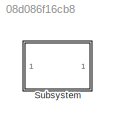
MODEL slx_08d086f16cb8
KIND model
CONFIG AbsTol = auto
CONFIG EnableMultiTasking = off
CONFIG FixedStep = auto
CONFIG MaxStep = auto
CONFIG MinStep = auto
CONFIG RelTol = 1e-3
CONFIG SampleTimeConstraint = Unconstrained
CONFIG SolverName = VariableStepAuto
CONFIG StartTime = 0.0
CONFIG StopTime = 10.0
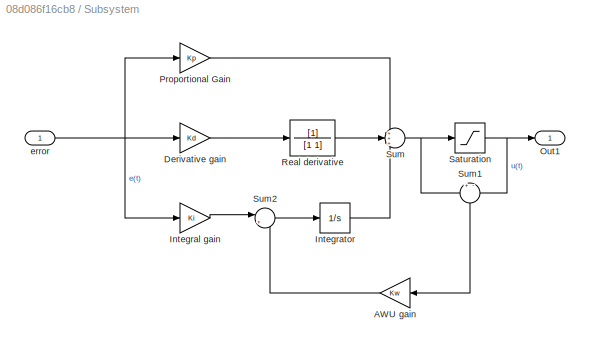
BLOCK [SubSystem] Subsystem
BLOCK [Gain] Subsystem/AWU gain
  Gain = Kw
  NameLocation = top
BLOCK [Gain] Subsystem/Derivative gain
  Gain = Kd
BLOCK [Gain] Subsystem/Integral gain
  Gain = Ki
BLOCK [Integrator] Subsystem/Integrator
BLOCK [Outport] Subsystem/Out1
BLOCK [Gain] Subsystem/Proportional Gain
  Gain = Kp
BLOCK [TransferFcn] Subsystem/Real derivative
  Denominator = [1 1]
BLOCK [Saturate] Subsystem/Saturation
  NameLocation = top
BLOCK [Sum] Subsystem/Sum
  Inputs = +++
BLOCK [Sum] Subsystem/Sum1
  Inputs = +-
  NameLocation = left
BLOCK [Sum] Subsystem/Sum2
  Inputs = |+-
BLOCK [Inport] Subsystem/error
LINE Subsystem/AWU gain:1 -> Subsystem/Sum2:2
LINE Subsystem/Derivative gain:1 -> Subsystem/Real derivative:1
LINE Subsystem/Integral gain:1 -> Subsystem/Sum2:1
LINE Subsystem/Integrator:1 -> Subsystem/Sum:3
LINE Subsystem/Proportional Gain:1 -> Subsystem/Sum:1
LINE Subsystem/Real derivative:1 -> Subsystem/Sum:2
NET Subsystem/Saturation:1 -> Subsystem/Out1:1, Subsystem/Sum1:2
LINE Subsystem/Sum1:1 -> Subsystem/AWU gain:1
LINE Subsystem/Sum2:1 -> Subsystem/Integrator:1
NET Subsystem/Sum:1 -> Subsystem/Saturation:1, Subsystem/Sum1:1
NET Subsystem/error:1 -> Subsystem/Derivative gain:1, Subsystem/Integral gain:1, Subsystem/Proportional Gain:1
note: NET lines group one-source signal fan-out (src -> all destinations, sorted); 1:1 wires keep LINE
